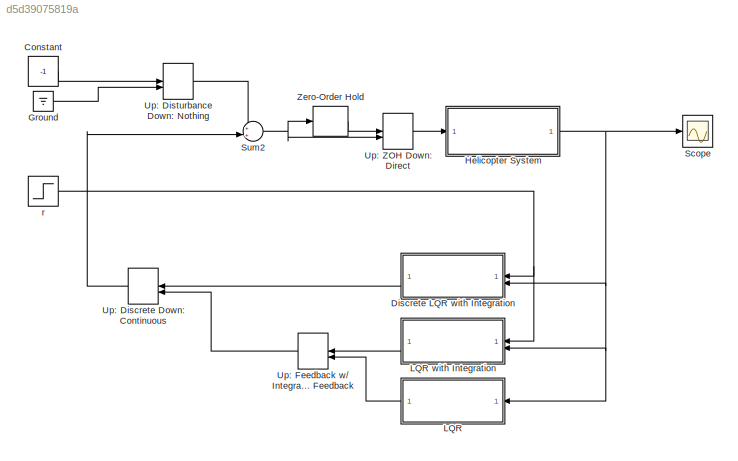
MODEL slx_d5d39075819a
KIND model
CONFIG AbsTol = auto
CONFIG EnableMultiTasking = off
CONFIG FixedStep = 0.01
CONFIG MaxStep = auto
CONFIG MinStep = auto
CONFIG RelTol = 1e-3
CONFIG SampleTimeConstraint = Unconstrained
CONFIG SolverName = ode1
CONFIG StartTime = 0.0
CONFIG StopTime = 15
BLOCK [Constant] Constant
  Value = -1
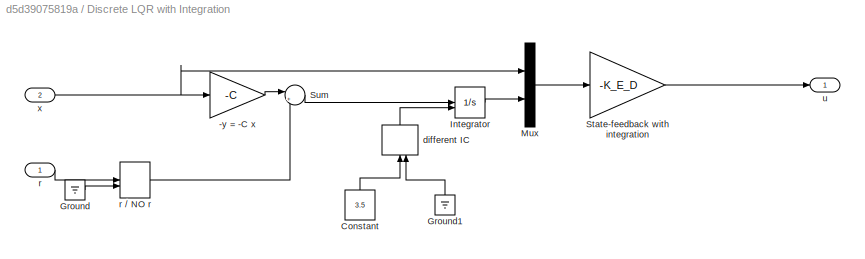
BLOCK [SubSystem] Discrete LQR with Integration
  NameLocation = top
BLOCK [Gain] Discrete LQR with Integration/-y = -C x
  Gain = -C
  Multiplication = Matrix(K*u) (u vector)
BLOCK [Constant] Discrete LQR with Integration/Constant
  NameLocation = right
  Value = 3.5
BLOCK [Ground] Discrete LQR with Integration/Ground
BLOCK [Ground] Discrete LQR with Integration/Ground1
  NameLocation = right
BLOCK [Integrator] Discrete LQR with Integration/Integrator
  InitialConditionSource = external
BLOCK [Mux] Discrete LQR with Integration/Mux
  DisplayOption = bar
  Inputs = 2
BLOCK [Gain] Discrete LQR with Integration/State-feedback with integration
  Gain = -K_E_D
  Multiplication = Matrix(K*u) (u vector)
BLOCK [Sum] Discrete LQR with Integration/Sum
  Inputs = |++
BLOCK [ManualSwitch] Discrete LQR with Integration/different IC
  CurrentSetting = 0
  NameLocation = right
BLOCK [Inport] Discrete LQR with Integration/r
BLOCK [ManualSwitch] Discrete LQR with Integration/r // NO r
BLOCK [Outport] Discrete LQR with Integration/u
BLOCK [Inport] Discrete LQR with Integration/x
  Port = 2
BLOCK [Ground] Ground
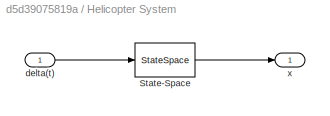
BLOCK [SubSystem] Helicopter System
BLOCK [StateSpace] Helicopter System/State-Space
  A = A
  B = B
  C = eye(3)
  D = zeros(3,1)
  InitialCondition = [0;0;1]
BLOCK [Inport] Helicopter System/delta(t)
BLOCK [Outport] Helicopter System/x
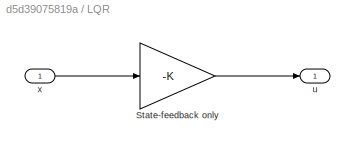
BLOCK [SubSystem] LQR
  NameLocation = top
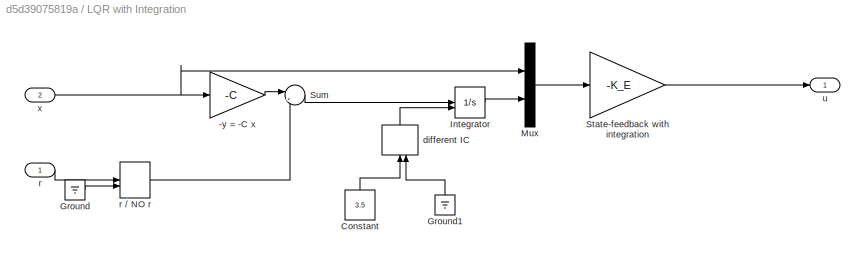
BLOCK [SubSystem] LQR with Integration
  NameLocation = top
BLOCK [Gain] LQR with Integration/-y = -C x
  Gain = -C
  Multiplication = Matrix(K*u) (u vector)
BLOCK [Constant] LQR with Integration/Constant
  NameLocation = right
  Value = 3.5
BLOCK [Ground] LQR with Integration/Ground
BLOCK [Ground] LQR with Integration/Ground1
  NameLocation = right
BLOCK [Integrator] LQR with Integration/Integrator
  InitialConditionSource = external
BLOCK [Mux] LQR with Integration/Mux
  DisplayOption = bar
  Inputs = 2
BLOCK [Gain] LQR with Integration/State-feedback with integration
  Gain = -K_E
  Multiplication = Matrix(K*u) (u vector)
BLOCK [Sum] LQR with Integration/Sum
  Inputs = |++
BLOCK [ManualSwitch] LQR with Integration/different IC
  CurrentSetting = 0
  NameLocation = right
BLOCK [Inport] LQR with Integration/r
BLOCK [ManualSwitch] LQR with Integration/r // NO r
BLOCK [Outport] LQR with Integration/u
BLOCK [Inport] LQR with Integration/x
  Port = 2
BLOCK [Gain] LQR/State-feedback only
  Gain = -K
  Multiplication = Matrix(K*u) (u vector)
BLOCK [Outport] LQR/u
BLOCK [Inport] LQR/x
BLOCK [Scope] Scope
  Floating = off
  NumInputPorts = 1
  ScopeSpecificationString = Simulink.scopes.TimeScopeBlockCfg('CurrentConfiguration', extmgr.ConfigurationSet(extmgr.Configuration('Core','General UI',true),extmgr.Configuration('Core','Source UI',true),extmgr.Configuration('Sources','WiredSimulink',true),extmgr.Configuration('Visuals','Time Domain',true,'SerializedDisplays',{struct('MinYLimReal','-2.44575','MaxYLimReal','11.42579','YLabelReal','','MinYLimMag','0.00000','Max...<+1539ch>
BLOCK [Sum] Sum2
  Inputs = ++|
BLOCK [ManualSwitch] Up: Discrete Down: Continuous
  NameLocation = top
BLOCK [ManualSwitch] Up: Disturbance Down: Nothing
BLOCK [ManualSwitch] Up: Feedback w// Integration Down: Feedback
  NameLocation = top
BLOCK [ManualSwitch] Up: ZOH Down: Direct
BLOCK [ZeroOrderHold] Zero-Order Hold
  SampleTime = sample_period
BLOCK [Step] r
  After = 10
  SampleTime = 0
  Time = 8
LINE Constant:1 -> Up: Disturbance Down: Nothing:1
LINE Discrete LQR with Integration/-y = -C x:1 -> Discrete LQR with Integration/Sum:1
LINE Discrete LQR with Integration/Constant:1 -> Discrete LQR with Integration/different IC:1
LINE Discrete LQR with Integration/Ground1:1 -> Discrete LQR with Integration/different IC:2
LINE Discrete LQR with Integration/Ground:1 -> Discrete LQR with Integration/r // NO r:2
LINE Discrete LQR with Integration/Integrator:1 -> Discrete LQR with Integration/Mux:2
LINE Discrete LQR with Integration/Mux:1 -> Discrete LQR with Integration/State-feedback with integration:1
LINE Discrete LQR with Integration/State-feedback with integration:1 -> Discrete LQR with Integration/u:1
LINE Discrete LQR with Integration/Sum:1 -> Discrete LQR with Integration/Integrator:1
LINE Discrete LQR with Integration/different IC:1 -> Discrete LQR with Integration/Integrator:2
LINE Discrete LQR with Integration/r // NO r:1 -> Discrete LQR with Integration/Sum:2
LINE Discrete LQR with Integration/r:1 -> Discrete LQR with Integration/r // NO r:1
NET Discrete LQR with Integration/x:1 -> Discrete LQR with Integration/-y = -C x:1, Discrete LQR with Integration/Mux:1
LINE Discrete LQR with Integration:1 -> Up: Discrete Down: Continuous:1
LINE Ground:1 -> Up: Disturbance Down: Nothing:2
LINE Helicopter System/State-Space:1 -> Helicopter System/x:1
LINE Helicopter System/delta(t):1 -> Helicopter System/State-Space:1
NET Helicopter System:1 -> Discrete LQR with Integration:2, LQR with Integration:2, LQR:1, Scope:1
LINE LQR with Integration/-y = -C x:1 -> LQR with Integration/Sum:1
LINE LQR with Integration/Constant:1 -> LQR with Integration/different IC:1
LINE LQR with Integration/Ground1:1 -> LQR with Integration/different IC:2
LINE LQR with Integration/Ground:1 -> LQR with Integration/r // NO r:2
LINE LQR with Integration/Integrator:1 -> LQR with Integration/Mux:2
LINE LQR with Integration/Mux:1 -> LQR with Integration/State-feedback with integration:1
LINE LQR with Integration/State-feedback with integration:1 -> LQR with Integration/u:1
LINE LQR with Integration/Sum:1 -> LQR with Integration/Integrator:1
LINE LQR with Integration/different IC:1 -> LQR with Integration/Integrator:2
LINE LQR with Integration/r // NO r:1 -> LQR with Integration/Sum:2
LINE LQR with Integration/r:1 -> LQR with Integration/r // NO r:1
NET LQR with Integration/x:1 -> LQR with Integration/-y = -C x:1, LQR with Integration/Mux:1
LINE LQR with Integration:1 -> Up: Feedback w// Integration Down: Feedback:1
LINE LQR/State-feedback only:1 -> LQR/u:1
LINE LQR/x:1 -> LQR/State-feedback only:1
LINE LQR:1 -> Up: Feedback w// Integration Down: Feedback:2
NET Sum2:1 -> Up: ZOH Down: Direct:2, Zero-Order Hold:1
LINE Up: Discrete Down: Continuous:1 -> Sum2:2
LINE Up: Disturbance Down: Nothing:1 -> Sum2:1
LINE Up: Feedback w// Integration Down: Feedback:1 -> Up: Discrete Down: Continuous:2
LINE Up: ZOH Down: Direct:1 -> Helicopter System:1
LINE Zero-Order Hold:1 -> Up: ZOH Down: Direct:1
NET r:1 -> Discrete LQR with Integration:1, LQR with Integration:1
note: NET lines group one-source signal fan-out (src -> all destinations, sorted); 1:1 wires keep LINE
